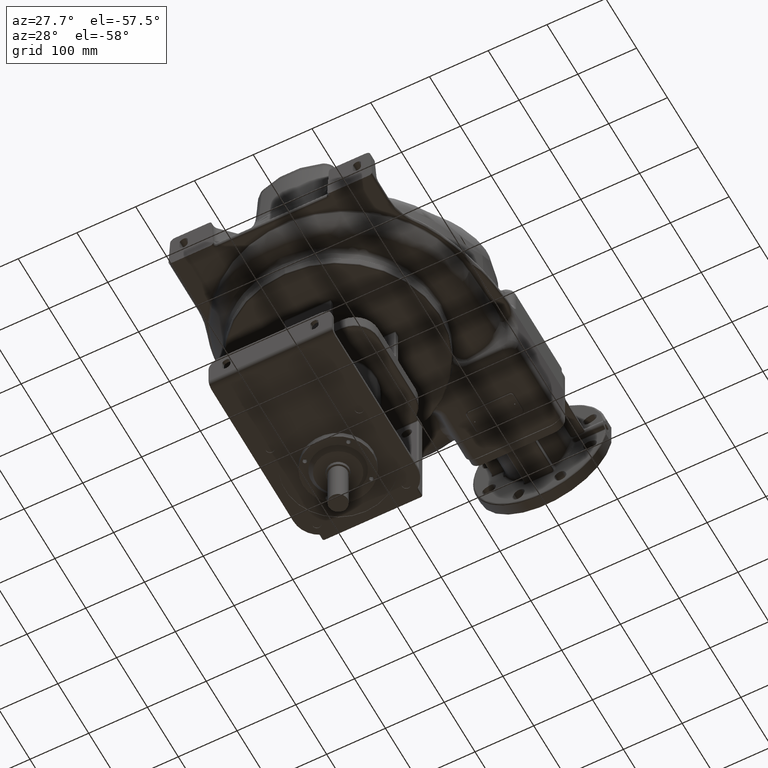
[diagram: clean part render]
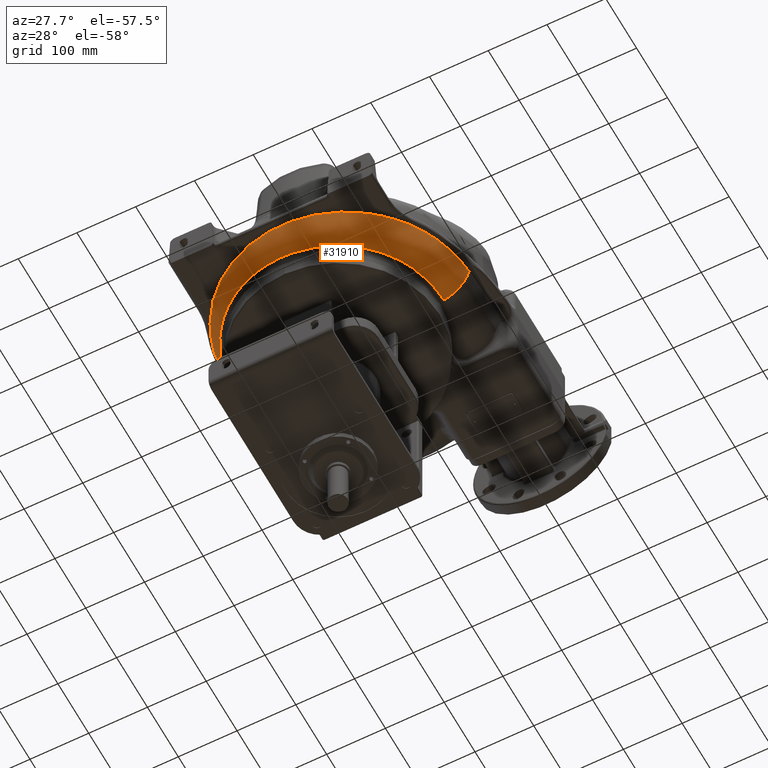
[diagram: same view with one face highlighted and labeled with its STEP entity id]
A machine part, auxiliary view. The second image highlights one B-rep face of the part: STEP entity #31910.
In plain terms, the highlighted face is a freeform B-spline surface patch.
Its self-contained STEP definition (entity closure, byte-faithful):
#4995=CARTESIAN_POINT('',(1.995254930212E2,2.198767022094E2,-9.416684251879E1));
#4996=CARTESIAN_POINT('',(2.012862758722E2,2.198599892614E2,-9.361539147830E1));
#4997=CARTESIAN_POINT('',(2.068400769254E2,2.198035409127E2,-9.159984907690E1));
#4998=CARTESIAN_POINT('',(2.156669233408E2,2.197164609426E2,-8.688004971270E1));
#4999=CARTESIAN_POINT('',(2.251198556505E2,2.195961515524E2,-7.911717179944E1));
#5000=CARTESIAN_POINT('',(2.328752383668E2,2.194748036736E2,-6.965939572615E1));
#5001=CARTESIAN_POINT('',(2.386352686991E2,2.193577415574E2,-5.886928424299E1));
#5002=CARTESIAN_POINT('',(2.411865120035E2,2.193118446787E2,-5.044815780028E1));
#5003=CARTESIAN_POINT('',(2.420309093590E2,2.192862955119E2,-4.581760230919E1));
#5004=CARTESIAN_POINT('',(2.421368989397E2,2.192831059374E2,-4.517971400711E1));
#5093=CARTESIAN_POINT('',(2.403621677771E2,2.012945648818E2,-4.520057652036E1));
#5094=CARTESIAN_POINT('',(2.406536483446E2,2.033799629870E2,-4.519806872358E1));
#5095=CARTESIAN_POINT('',(2.411671713307E2,2.074877189616E2,-4.519322657947E1));
#5096=CARTESIAN_POINT('',(2.417547283081E2,2.134717536841E2,-4.518565136657E1));
#5097=CARTESIAN_POINT('',(2.420202553778E2,2.173920182448E2,-4.518203252986E1));
#5098=CARTESIAN_POINT('',(2.421368989397E2,2.192831059374E2,-4.517971400711E1));
#5100=CARTESIAN_POINT('',(1.995254930212E2,2.198767022094E2,-9.416684251879E1));
#5101=CARTESIAN_POINT('',(1.994574612186E2,2.100847109564E2,-9.407725013904E1));
#5102=CARTESIAN_POINT('',(1.981142767083E2,1.932970106015E2,-9.389267116444E1));
#5103=CARTESIAN_POINT('',(1.920103348928E2,1.665362472095E2,-9.359536508671E1));
#5104=CARTESIAN_POINT('',(1.820948290006E2,1.415711324878E2,-9.327886241217E1));
#5105=CARTESIAN_POINT('',(1.685462212619E2,1.182032656371E2,-9.294028843835E1));
#5106=CARTESIAN_POINT('',(1.516896110822E2,9.717046315025E1,-9.257822733132E1));
#5107=CARTESIAN_POINT('',(1.318869150503E2,7.887100707956E1,-9.219000988661E1));
#5108=CARTESIAN_POINT('',(1.096068029796E2,6.374473382465E1,-9.177313388966E1));
#5109=CARTESIAN_POINT('',(8.533870225543E1,5.210552734617E1,-9.132463137844E1));
#5110=CARTESIAN_POINT('',(5.958621988299E1,4.420298692060E1,-9.084089528901E1));
#5111=CARTESIAN_POINT('',(3.296378537401E1,4.022848769725E1,-9.031899955044E1));
#5112=CARTESIAN_POINT('',(6.070392006527E0,4.026581870603E1,-8.975744364094E1));
#5113=CARTESIAN_POINT('',(-2.047330575376E1,4.430475179535E1,
-8.915387957186E1));
#5114=CARTESIAN_POINT('',(-4.610361602874E1,5.224524672189E1,
-8.850151632224E1));
#5115=CARTESIAN_POINT('',(-7.027381225204E1,6.392174821069E1,
-8.779252960426E1));
#5116=CARTESIAN_POINT('',(-9.241487978657E1,7.906017052550E1,
-8.701979466266E1));
#5117=CARTESIAN_POINT('',(-1.120408184767E2,9.732255229537E1,
-8.617376952138E1));
#5118=CARTESIAN_POINT('',(-1.287041734275E2,1.182812459213E2,
-8.524286933276E1));
#5119=CARTESIAN_POINT('',(-1.420580356226E2,1.414914967775E2,
-8.421119536122E1));
#5120=CARTESIAN_POINT('',(-1.517977795090E2,1.664351761190E2,
-8.305895518538E1));
#5121=CARTESIAN_POINT('',(-1.576970947774E2,1.925265317353E2,
-8.176548898402E1));
#5122=CARTESIAN_POINT('',(-1.589947476561E2,2.102873198188E2,
-8.077654001956E1));
#5123=CARTESIAN_POINT('',(-1.589754472696E2,2.191590052963E2,
-8.025156820779E1));
#5125=CARTESIAN_POINT('',(-1.589754472696E2,2.191590052963E2,
-8.025156820779E1));
#5126=CARTESIAN_POINT('',(-1.589703731581E2,2.218390739885E2,
-8.009205492426E1));
#5127=CARTESIAN_POINT('',(-1.588391042828E2,2.271965434280E2,
-7.976569099894E1));
#5128=CARTESIAN_POINT('',(-1.582804738650E2,2.352113116185E2,
-7.925284313603E1));
#5129=CARTESIAN_POINT('',(-1.573615123363E2,2.431903076760E2,
-7.871547152061E1));
#5130=CARTESIAN_POINT('',(-1.560842774233E2,2.511176945588E2,
-7.815242360165E1));
#5131=CARTESIAN_POINT('',(-1.546254338293E2,2.581404109317E2,
-7.762393087865E1));
#5132=CARTESIAN_POINT('',(-1.535454622422E2,2.625039264964E2,
-7.727639862865E1));
#5133=CARTESIAN_POINT('',(-1.530806877845E2,2.642652668738E2,
-7.713301338181E1));
#5135=CARTESIAN_POINT('',(-1.530806877845E2,2.642652668738E2,
-7.713301338181E1));
#5136=CARTESIAN_POINT('',(-1.555671932030E2,2.610861609744E2,
-7.437344202418E1));
#5137=CARTESIAN_POINT('',(-1.597645035352E2,2.547052451548E2,
-6.867019467310E1));
#5138=CARTESIAN_POINT('',(-1.641941496515E2,2.450742891012E2,
-5.977419080802E1));
#5139=CARTESIAN_POINT('',(-1.667766731549E2,2.363684395481E2,
-5.181119459627E1));
#5140=CARTESIAN_POINT('',(-1.676807851390E2,2.307161369092E2,
-4.721609365995E1));
#5141=CARTESIAN_POINT('',(-1.679816427398E2,2.279101150040E2,
-4.525928142582E1));
#5143=CARTESIAN_POINT('',(-1.679816427398E2,2.279101150040E2,
-4.525928142582E1));
#5144=CARTESIAN_POINT('',(-1.681920574513E2,2.257840720139E2,
-4.517867703848E1));
#5145=CARTESIAN_POINT('',(-1.685345958341E2,2.215792240930E2,
-4.503117790733E1));
#5146=CARTESIAN_POINT('',(-1.688299444850E2,2.154061194203E2,
-4.488593075591E1));
#5147=CARTESIAN_POINT('',(-1.688911636724E2,2.114137685214E2,
-4.485174359113E1));
#5148=CARTESIAN_POINT('',(-1.688909311784E2,2.094470320134E2,
-4.485005922300E1));
#5150=CARTESIAN_POINT('',(-1.688909311784E2,2.094470320134E2,
-4.485005922300E1));
#5151=CARTESIAN_POINT('',(-1.688900744136E2,2.022218077844E2,
-4.484387146770E1));
#5152=CARTESIAN_POINT('',(-1.680554965257E2,1.877422666248E2,
-4.483173071221E1));
#5153=CARTESIAN_POINT('',(-1.643152729931E2,1.662380591924E2,
-4.481333270458E1));
#5154=CARTESIAN_POINT('',(-1.601768030485E2,1.522025835402E2,
-4.480180580058E1));
#5155=CARTESIAN_POINT('',(-1.577072543905E2,1.453093788699E2,
-4.479582260635E1));
#5157=CARTESIAN_POINT('',(-1.577072543905E2,1.453093788699E2,
-4.479582260635E1));
#5158=CARTESIAN_POINT('',(-1.566626895949E2,1.423937004130E2,
-4.479325775293E1));
#5159=CARTESIAN_POINT('',(-1.544483818740E2,1.366542314917E2,
-4.497046870554E1));
#5160=CARTESIAN_POINT('',(-1.505952640485E2,1.280110821730E2,
-4.556609791123E1));
#5161=CARTESIAN_POINT('',(-1.480157151643E2,1.228956957141E2,
-4.578962231036E1));
#5162=CARTESIAN_POINT('',(-1.467180720611E2,1.204356040242E2,
-4.578681979600E1));
#5164=CARTESIAN_POINT('',(-1.467180720611E2,1.204356040242E2,
-4.578681979600E1));
#5165=CARTESIAN_POINT('',(-1.424836438297E2,1.124079814821E2,
-4.577761776077E1));
#5166=CARTESIAN_POINT('',(-1.328631765930E2,9.690946403487E1,
-4.575901251045E1));
#5167=CARTESIAN_POINT('',(-1.152485234600E2,7.581509609112E1,
-4.573055907554E1));
#5168=CARTESIAN_POINT('',(-9.474531880642E1,5.727037698843E1,
-4.570151436146E1));
#5169=CARTESIAN_POINT('',(-7.169874468006E1,4.165257167819E1,
-4.567187986935E1));
#5170=CARTESIAN_POINT('',(-4.656329763918E1,2.932279699128E1,
-4.564168671575E1));
#5171=CARTESIAN_POINT('',(-1.982183026193E1,2.055353767802E1,
-4.561103963234E1));
#5172=CARTESIAN_POINT('',(8.021710706573E0,1.554102910481E1,-4.557990539937E1));
#5173=CARTESIAN_POINT('',(3.648569074103E1,1.441484463091E1,-4.554824855636E1));
#5174=CARTESIAN_POINT('',(6.500385393166E1,1.724574304191E1,-4.551612757960E1));
#5175=CARTESIAN_POINT('',(9.300919853171E1,2.401412308114E1,-4.548357442695E1));
#5176=CARTESIAN_POINT('',(1.199507205631E2,3.461797011246E1,-4.545059984187E1));
#5177=CARTESIAN_POINT('',(1.453220361131E2,4.888988157812E1,-4.541725318537E1));
#5178=CARTESIAN_POINT('',(1.686470183527E2,6.660967570012E1,-4.538349465059E1));
#5179=CARTESIAN_POINT('',(1.825059645238E2,8.050507949889E1,-4.536073023286E1));
#5180=CARTESIAN_POINT('',(1.889460815896E2,8.791316642398E1,-4.534928334569E1));
#5182=CARTESIAN_POINT('',(1.889460815896E2,8.791316642398E1,-4.534928334569E1));
#5183=CARTESIAN_POINT('',(1.904817203420E2,8.967963273930E1,-4.534654674816E1));
#5184=CARTESIAN_POINT('',(1.935499158603E2,9.328256395296E1,-4.514845472029E1));
#5185=CARTESIAN_POINT('',(1.982455629827E2,9.916722171992E1,-4.466825781582E1));
#5186=CARTESIAN_POINT('',(2.010694208428E2,1.030055370248E2,-4.453229882786E1));
#5187=CARTESIAN_POINT('',(2.024333619274E2,1.049358941290E2,-4.453151828639E1));
#5189=CARTESIAN_POINT('',(2.024333619274E2,1.049358941290E2,-4.453151828639E1));
#5190=CARTESIAN_POINT('',(2.055427315354E2,1.093365261585E2,-4.452970029625E1));
#5191=CARTESIAN_POINT('',(2.114422825591E2,1.183822813355E2,-4.452596058482E1));
#5192=CARTESIAN_POINT('',(2.192763210783E2,1.326052982714E2,-4.452061017041E1));
#5193=CARTESIAN_POINT('',(2.237960485444E2,1.424855075819E2,-4.451742932346E1));
#5194=CARTESIAN_POINT('',(2.258727182275E2,1.475110370816E2,-4.451571365787E1));
#5196=CARTESIAN_POINT('',(2.258727182275E2,1.475110370816E2,-4.451571365787E1));
#5197=CARTESIAN_POINT('',(2.281248256996E2,1.529611755041E2,-4.451386507398E1));
#5198=CARTESIAN_POINT('',(2.322628344673E2,1.642435068882E2,-4.462261752965E1));
#5199=CARTESIAN_POINT('',(2.372249815956E2,1.825368372572E2,-4.502441863477E1));
#5200=CARTESIAN_POINT('',(2.394802942276E2,1.949850637622E2,-4.520816133803E1));
#5201=CARTESIAN_POINT('',(2.403621677771E2,2.012945648818E2,-4.520057652036E1));
#16829=VERTEX_POINT('',#5093);
#16830=VERTEX_POINT('',#5098);
#17151=VERTEX_POINT('',#5164);
#17152=VERTEX_POINT('',#5180);
#17239=VERTEX_POINT('',#5196);
#17241=VERTEX_POINT('',#5189);
#17243=VERTEX_POINT('',#5157);
#17245=VERTEX_POINT('',#5150);
#17247=VERTEX_POINT('',#5143);
#17334=VERTEX_POINT('',#5100);
#17335=VERTEX_POINT('',#5123);
#17349=VERTEX_POINT('',#5133);
#31501=CARTESIAN_POINT('',(-1.578851870967E2,2.727176717335E2,
-4.510989501510E1));
#31502=CARTESIAN_POINT('',(-1.592561862800E2,2.689112312007E2,
-4.505236844996E1));
#31503=CARTESIAN_POINT('',(-1.638825184477E2,2.546133604871E2,
-4.483876907299E1));
#31504=CARTESIAN_POINT('',(-1.688457478832E2,2.290072147267E2,
-4.446902983124E1));
#31505=CARTESIAN_POINT('',(-1.693723045594E2,1.960009638886E2,
-4.400063484999E1));
#31506=CARTESIAN_POINT('',(-1.641911856303E2,1.634243431788E2,
-4.353217384073E1));
#31507=CARTESIAN_POINT('',(-1.535222720337E2,1.322365154289E2,
-4.306367640090E1));
#31508=CARTESIAN_POINT('',(-1.377381736464E2,1.033257861463E2,
-4.259517066088E1));
#31509=CARTESIAN_POINT('',(-1.173456464295E2,7.748767489249E1,
-4.212668334364E1));
#31510=CARTESIAN_POINT('',(-9.296453629116E1,5.540709039800E1,
-4.165823986841E1));
#31511=CARTESIAN_POINT('',(-6.530487689823E1,3.764493958841E1,
-4.118986442526E1));
#31512=CARTESIAN_POINT('',(-3.514318060607E1,2.462906781481E1,
-4.072158004449E1));
#31513=CARTESIAN_POINT('',(-3.298479926369E0,1.664937016129E1,
-4.025340867129E1));
#31514=CARTESIAN_POINT('',(2.939114700380E1,1.385696340112E1,
-3.978537122974E1));
#31515=CARTESIAN_POINT('',(6.209095609220E1,1.626700481138E1,
-3.931748768205E1));
#31516=CARTESIAN_POINT('',(9.399036587234E1,2.376479803728E1,
-3.884977708635E1));
#31517=CARTESIAN_POINT('',(1.243218235708E2,3.611477543578E1,
-3.838225765102E1));
#31518=CARTESIAN_POINT('',(1.523773494827E2,5.297183281202E1,
-3.791494678273E1));
#31519=CARTESIAN_POINT('',(1.775227073597E2,7.389474899020E1,
-3.744786114281E1));
#31520=CARTESIAN_POINT('',(1.992084845077E2,9.836047961054E1,
-3.698101665648E1));
#31521=CARTESIAN_POINT('',(2.169798609548E2,1.257812823902E2,
-3.651442867339E1));
#31522=CARTESIAN_POINT('',(2.282295053292E2,1.505607114197E2,
-3.612583114413E1));
#31523=CARTESIAN_POINT('',(2.349697692902E2,1.712089306404E2,
-3.581509588587E1));
#31524=CARTESIAN_POINT('',(2.382226913911E2,1.843828739891E2,
-3.562094702944E1));
#31525=CARTESIAN_POINT('',(2.402431921560E2,1.950437959484E2,
-3.546566538552E1));
#31526=CARTESIAN_POINT('',(2.412608821561E2,2.017489624073E2,
-3.536863006717E1));
#31527=CARTESIAN_POINT('',(2.419281446627E2,2.071254995849E2,
-3.529101124464E1));
#31528=CARTESIAN_POINT('',(2.422856610714E2,2.104932580455E2,
-3.524250349161E1));
#31529=CARTESIAN_POINT('',(2.425347167843E2,2.132096401217E2,
-3.520369997787E1));
#31530=CARTESIAN_POINT('',(2.429430543580E2,2.182356166608E2,
-3.513184462691E1));
#31531=CARTESIAN_POINT('',(2.431621307957E2,2.224027242105E2,
-3.506970046865E1));
#31532=CARTESIAN_POINT('',(2.433813858669E2,2.257922388988E2,
-3.501725466826E1));
#31533=CARTESIAN_POINT('',(-1.578829460107E2,2.727089677562E2,
-4.817623398237E1));
#31534=CARTESIAN_POINT('',(-1.592537682985E2,2.689025460377E2,
-4.812511076636E1));
#31535=CARTESIAN_POINT('',(-1.638794467270E2,2.546047662382E2,
-4.793526230518E1));
#31536=CARTESIAN_POINT('',(-1.688415725060E2,2.289989096945E2,
-4.760647030894E1));
#31537=CARTESIAN_POINT('',(-1.693668166374E2,1.959932481692E2,
-4.718962160779E1));
#31538=CARTESIAN_POINT('',(-1.641844980300E2,1.634174170862E2,
-4.677236881842E1));
#31539=CARTESIAN_POINT('',(-1.535145198874E2,1.322305561050E2,
-4.635472029912E1));
#31540=CARTESIAN_POINT('',(-1.377295103177E2,1.033209482329E2,
-4.593668479890E1));
#31541=CARTESIAN_POINT('',(-1.173362407821E2,7.748409138057E1,
-4.551827047272E1));
#31542=CARTESIAN_POINT('',(-9.295457120568E1,5.540487347608E1,
-4.509948545642E1));
#31543=CARTESIAN_POINT('',(-6.529454884438E1,3.764418093045E1,
-4.468033775135E1));
#31544=CARTESIAN_POINT('',(-3.513269986518E1,2.462983787365E1,
-4.426083499470E1));
#31545=CARTESIAN_POINT('',(-3.288071076151E0,1.665171633764E1,
-4.384098466749E1));
#31546=CARTESIAN_POINT('',(2.940124485915E1,1.386090693511E1,
-4.342079406408E1));
#31547=CARTESIAN_POINT('',(6.210048994581E1,1.627253647147E1,
-4.300027020851E1));
#31548=CARTESIAN_POINT('',(9.399907077109E1,2.377187290877E1,
-4.257941987768E1));
#31549=CARTESIAN_POINT('',(1.243294263170E2,3.612330727030E1,
-4.215824963748E1));
#31550=CARTESIAN_POINT('',(1.523835743377E2,5.298168847297E1,
-4.173676574338E1));
#31551=CARTESIAN_POINT('',(1.775272837070E2,7.390574383143E1,
-4.131497454222E1));
#31552=CARTESIAN_POINT('',(1.992111566357E2,9.837237386213E1,
-4.089288088725E1));
#31553=CARTESIAN_POINT('',(2.169803983120E2,1.257937808462E2,
-4.047049342658E1));
#31554=CARTESIAN_POINT('',(2.282281046768E2,1.505734201581E2,
-4.011825592944E1));
#31555=CARTESIAN_POINT('',(2.349667451448E2,1.712216080530E2,
-3.983633092248E1));
#31556=CARTESIAN_POINT('',(2.382186313243E2,1.843954427390E2,
-3.966006294411E1));
#31557=CARTESIAN_POINT('',(2.402382912287E2,1.950562224595E2,
-3.951901788184E1));
#31558=CARTESIAN_POINT('',(2.412554510694E2,2.017612756538E2,
-3.943084944437E1));
#31559=CARTESIAN_POINT('',(2.419222949177E2,2.071377099210E2,
-3.936030206659E1));
#31560=CARTESIAN_POINT('',(2.422795484357E2,2.105053967835E2,
-3.931620703755E1));
#31561=CARTESIAN_POINT('',(2.425283747920E2,2.132217089417E2,
-3.928093902809E1));
#31562=CARTESIAN_POINT('',(2.429362972414E2,2.182475626829E2,
-3.921558566990E1));
#31563=CARTESIAN_POINT('',(2.431552036013E2,2.224146735191E2,
-3.915913112947E1));
#31564=CARTESIAN_POINT('',(2.433744312832E2,2.258042225120E2,
-3.911124155113E1));
#31565=CARTESIAN_POINT('',(-1.575316432579E2,2.725571166066E2,
-5.423147040671E1));
#31566=CARTESIAN_POINT('',(-1.588969213560E2,2.687573494192E2,
-5.418930658605E1));
#31567=CARTESIAN_POINT('',(-1.635027112957E2,2.544851645692E2,
-5.403271444659E1));
#31568=CARTESIAN_POINT('',(-1.684353422814E2,2.289290701063E2,
-5.376141969812E1));
#31569=CARTESIAN_POINT('',(-1.689343978373E2,1.959949143783E2,
-5.341726942071E1));
#31570=CARTESIAN_POINT('',(-1.637388134502E2,1.634970486604E2,
-5.307257362699E1));
#31571=CARTESIAN_POINT('',(-1.530698758167E2,1.323922349038E2,
-5.272732393855E1));
#31572=CARTESIAN_POINT('',(-1.373011581885E2,1.035661091451E2,
-5.238151385678E1));
#31573=CARTESIAN_POINT('',(-1.169398744167E2,7.781131199312E1,
-5.203513586931E1));
#31574=CARTESIAN_POINT('',(-9.260577753764E1,5.580977149072E1,
-5.168818313380E1));
#31575=CARTESIAN_POINT('',(-6.500823394633E1,3.811942035621E1,
-5.134064913995E1));
#31576=CARTESIAN_POINT('',(-3.492250177512E1,2.516524897344E1,
-5.099252700157E1));
#31577=CARTESIAN_POINT('',(-3.165798441096E0,1.723454541935E1,
-5.064381005702E1));
#31578=CARTESIAN_POINT('',(2.942611792321E1,1.447618636898E1,
-5.029449179635E1));
#31579=CARTESIAN_POINT('',(6.202125026887E1,1.690356142206E1,
-4.994456560751E1));
#31580=CARTESIAN_POINT('',(9.381208206431E1,2.440076629735E1,
-4.959402487134E1));
#31581=CARTESIAN_POINT('',(1.240343152797E2,3.673164310911E1,
-4.924286309555E1));
#31582=CARTESIAN_POINT('',(1.519832756459E2,5.355113986581E1,
-4.889107369064E1));
#31583=CARTESIAN_POINT('',(1.770279407588E2,7.441871661292E1,
-4.853865114193E1));
#31584=CARTESIAN_POINT('',(1.986218948353E2,9.881259721304E1,
-4.818558668235E1));
#31585=CARTESIAN_POINT('',(2.163129741398E2,1.261468072917E2,
-4.783188298868E1));
#31586=CARTESIAN_POINT('',(2.275072008173E2,1.508436392191E2,
-4.753657167029E1));
#31587=CARTESIAN_POINT('',(2.342108826033E2,1.714207206276E2,
-4.730001623216E1));
#31588=CARTESIAN_POINT('',(2.374443420186E2,1.845484595902E2,
-4.715201564764E1));
#31589=CARTESIAN_POINT('',(2.394513416243E2,1.951713932060E2,
-4.703354479408E1));
#31590=CARTESIAN_POINT('',(2.404614792618E2,2.018523853842E2,
-4.695946413003E1));
#31591=CARTESIAN_POINT('',(2.411232963907E2,2.072098711402E2,
-4.690016817806E1));
#31592=CARTESIAN_POINT('',(2.414775950188E2,2.105654416498E2,
-4.686310083418E1));
#31593=CARTESIAN_POINT('',(2.417241080517E2,2.132707278446E2,
-4.683346953836E1));
#31594=CARTESIAN_POINT('',(2.421281355454E2,2.182776638110E2,
-4.677848371641E1));
#31595=CARTESIAN_POINT('',(2.423447614297E2,2.224433953760E2,
-4.673114117208E1));
#31596=CARTESIAN_POINT('',(2.425616801271E2,2.258338705191E2,
-4.669049141834E1));
#31597=CARTESIAN_POINT('',(-1.561155923470E2,2.719842718348E2,
-6.297148831498E1));
#31598=CARTESIAN_POINT('',(-1.574621649303E2,2.682125478818E2,
-6.293534608689E1));
#31599=CARTESIAN_POINT('',(-1.620016285063E2,2.540473002073E2,
-6.280110261188E1));
#31600=CARTESIAN_POINT('',(-1.668409000678E2,2.286932036395E2,
-6.256843614704E1));
#31601=CARTESIAN_POINT('',(-1.672671309992E2,1.960391259347E2,
-6.227314447277E1));
#31602=CARTESIAN_POINT('',(-1.620486683290E2,1.638375418206E2,
-6.197726763792E1));
#31603=CARTESIAN_POINT('',(-1.514099272572E2,1.330363275438E2,
-6.168082182047E1));
#31604=CARTESIAN_POINT('',(-1.357260655316E2,1.045116967038E2,
-6.138382586725E1));
#31605=CARTESIAN_POINT('',(-1.155041947371E2,7.904650908389E1,
-6.108629536647E1));
#31606=CARTESIAN_POINT('',(-9.136219295361E1,5.731289924576E1,
-6.078824576118E1));
#31607=CARTESIAN_POINT('',(-6.400576004187E1,3.985932377344E1,
-6.048969158537E1));
#31608=CARTESIAN_POINT('',(-3.420470226055E1,2.710194915129E1,
-6.019064495140E1));
#31609=CARTESIAN_POINT('',(-2.769130330352E0,1.932027528319E1,
-5.989111673620E1));
#31610=CARTESIAN_POINT('',(2.947374044231E1,1.665676802387E1,
-5.959111659751E1));
#31611=CARTESIAN_POINT('',(6.170161452685E1,1.912007539670E1,
-5.929065263002E1));
#31612=CARTESIAN_POINT('',(9.311746583043E1,2.659145058619E1,
-5.898973181906E1));
#31613=CARTESIAN_POINT('',(1.229678572161E2,3.883392463748E1,
-5.868836054324E1));
#31614=CARTESIAN_POINT('',(1.505589040213E2,5.550369273911E1,
-5.838654450481E1));
#31615=CARTESIAN_POINT('',(1.752698626249E2,7.616342628706E1,
-5.808429083864E1));
#31616=CARTESIAN_POINT('',(1.965637094281E2,1.002963505077E2,
-5.778160136348E1));
#31617=CARTESIAN_POINT('',(2.139964327972E2,1.273229578706E2,
-5.747849596575E1));
#31618=CARTESIAN_POINT('',(2.250158098050E2,1.517310699690E2,
-5.722553399785E1));
#31619=CARTESIAN_POINT('',(2.316063627705E2,1.720618210998E2,
-5.702299271166E1));
#31620=CARTESIAN_POINT('',(2.347807352592E2,1.850304392397E2,
-5.689629413229E1));
#31621=CARTESIAN_POINT('',(2.367475106254E2,1.955230322189E2,
-5.679490243692E1));
#31622=CARTESIAN_POINT('',(2.377355147127E2,2.021212669965E2,
-5.673150978341E1));
#31623=CARTESIAN_POINT('',(2.383815871329E2,2.074136126190E2,
-5.668077097707E1));
#31624=CARTESIAN_POINT('',(2.387266897971E2,2.107276314463E2,
-5.664904429394E1));
#31625=CARTESIAN_POINT('',(2.389660910762E2,2.133951862998E2,
-5.662369218585E1));
#31626=CARTESIAN_POINT('',(2.393581158554E2,2.183368003265E2,
-5.657667069121E1));
#31627=CARTESIAN_POINT('',(2.395673068538E2,2.224966777805E2,
-5.653644036902E1));
#31628=CARTESIAN_POINT('',(2.397763283827E2,2.258911386894E2,
-5.650121621780E1));
#31629=CARTESIAN_POINT('',(-1.538014686552E2,2.710635589171E2,
-7.131167052980E1));
#31630=CARTESIAN_POINT('',(-1.551193920903E2,2.673383311497E2,
-7.127988061870E1));
#31631=CARTESIAN_POINT('',(-1.595577631675E2,2.533499042810E2,
-7.116174680981E1));
#31632=CARTESIAN_POINT('',(-1.642579563553E2,2.283267025511E2,
-7.095663444170E1));
#31633=CARTESIAN_POINT('',(-1.645825493885E2,1.961258959211E2,
-7.069560787476E1));
#31634=CARTESIAN_POINT('',(-1.593430212976E2,1.643986218226E2,
-7.043333680853E1));
#31635=CARTESIAN_POINT('',(-1.487675808888E2,1.340785104135E2,
-7.016981213231E1));
#31636=CARTESIAN_POINT('',(-1.332327251137E2,1.060269256849E2,
-6.990503067507E1));
#31637=CARTESIAN_POINT('',(-1.132442722443E2,8.101155702329E1,
-6.963898577512E1));
#31638=CARTESIAN_POINT('',(-8.941608689511E1,5.968958548698E1,
-6.937167164336E1));
#31639=CARTESIAN_POINT('',(-6.244715277989E1,4.259523382601E1,
-6.910308207006E1));
#31640=CARTESIAN_POINT('',(-3.309791272798E1,3.013165529117E1,
-6.883320792082E1));
#31641=CARTESIAN_POINT('',(-2.166710868974E0,2.256712323666E1,
-6.856203901547E1));
#31642=CARTESIAN_POINT('',(2.953303346498E1,2.003515563982E1,
-6.828956444551E1));
#31643=CARTESIAN_POINT('',(6.119439382752E1,2.253813904847E1,
-6.801577233436E1));
#31644=CARTESIAN_POINT('',(9.203669808412E1,2.995405821250E1,
-6.774065095179E1));
#31645=CARTESIAN_POINT('',(1.213231960234E2,4.204582279788E1,
-6.746418982281E1));
#31646=CARTESIAN_POINT('',(1.483763467665E2,5.847264582133E1,
-6.718638009034E1));
#31647=CARTESIAN_POINT('',(1.725907450185E2,7.880316461511E1,
-6.690721731537E1));
#31648=CARTESIAN_POINT('',(1.934431448127E2,1.025292123872E2,
-6.662669353307E1));
#31649=CARTESIAN_POINT('',(2.105012378988E2,1.290819944448E2,
-6.634482475867E1));
#31650=CARTESIAN_POINT('',(2.212719880884E2,1.530499445746E2,
-6.610877666028E1));
#31651=CARTESIAN_POINT('',(2.277050689156E2,1.730078519737E2,
-6.591930403500E1));
#31652=CARTESIAN_POINT('',(2.307988830883E2,1.857367244506E2,
-6.580057459056E1));
#31653=CARTESIAN_POINT('',(2.327119879340E2,1.960336197484E2,
-6.570544158140E1));
#31654=CARTESIAN_POINT('',(2.336710243837E2,2.025078698746E2,
-6.564591329591E1));
#31655=CARTESIAN_POINT('',(2.342968785699E2,2.077027252620E2,
-6.559824199432E1));
#31656=CARTESIAN_POINT('',(2.346303530037E2,2.109547718436E2,
-6.556840069522E1));
#31657=CARTESIAN_POINT('',(2.348608702260E2,2.135662332113E2,
-6.554453699108E1));
#31658=CARTESIAN_POINT('',(2.352379828945E2,2.184096721632E2,
-6.550040636381E1));
#31659=CARTESIAN_POINT('',(2.354383896054E2,2.225587382393E2,
-6.546283207832E1));
#31660=CARTESIAN_POINT('',(2.356376823909E2,2.259603819810E2,
-6.542935555260E1));
#31661=CARTESIAN_POINT('',(-1.504653867690E2,2.697538679649E2,
-7.910064499128E1));
#31662=CARTESIAN_POINT('',(-1.517431824619E2,2.660961050631E2,
-7.907390225309E1));
#31663=CARTESIAN_POINT('',(-1.560403700374E2,2.523639934095E2,
-7.897431476220E1));
#31664=CARTESIAN_POINT('',(-1.605491079486E2,2.278187200917E2,
-7.880009555494E1));
#31665=CARTESIAN_POINT('',(-1.607399746064E2,1.962688705711E2,
-7.857614220814E1));
#31666=CARTESIAN_POINT('',(-1.554831683456E2,1.652186910795E2,
-7.834905837704E1));
#31667=CARTESIAN_POINT('',(-1.450111525401E2,1.355810255232E2,
-7.811899431479E1));
#31668=CARTESIAN_POINT('',(-1.297010667398E2,1.081959225636E2,
-7.788609936683E1));
#31669=CARTESIAN_POINT('',(-1.100556037041E2,8.380965334321E1,
-7.765050931260E1));
#31670=CARTESIAN_POINT('',(-8.668170457460E1,6.305863157650E1,
-7.741235187573E1));
#31671=CARTESIAN_POINT('',(-6.026774269683E1,4.645764563853E1,
-7.717174534837E1));
#31672=CARTESIAN_POINT('',(-3.156001931914E1,3.439240786325E1,
-7.692879550759E1));
#31673=CARTESIAN_POINT('',(-1.339607268278E0,2.711647713148E1,
-7.668359873378E1));
#31674=CARTESIAN_POINT('',(2.959991061345E1,2.475200312856E1,
-7.643624334598E1));
#31675=CARTESIAN_POINT('',(6.047334752765E1,2.729384689711E1,
-7.618681015487E1));
#31676=CARTESIAN_POINT('',(9.052284778981E1,3.461666498075E1,
-7.593537489611E1));
#31677=CARTESIAN_POINT('',(1.190346565364E2,4.648438161377E1,
-7.568201048403E1));
#31678=CARTESIAN_POINT('',(1.453534907770E2,6.256149495777E1,
-7.542678833599E1));
#31679=CARTESIAN_POINT('',(1.688945797522E2,8.242587945395E1,
-7.516978177563E1));
#31680=CARTESIAN_POINT('',(1.891529613144E2,1.055820946968E2,
-7.491105847584E1));
#31681=CARTESIAN_POINT('',(2.057115956019E2,1.314767770371E2,
-7.465070728462E1));
#31682=CARTESIAN_POINT('',(2.161549845745E2,1.548375979338E2,
-7.443241456910E1));
#31683=CARTESIAN_POINT('',(2.223835155854E2,1.742835975064E2,
-7.425707268859E1));
#31684=CARTESIAN_POINT('',(2.253740855021E2,1.866842456361E2,
-7.414715327564E1));
#31685=CARTESIAN_POINT('',(2.272193888203E2,1.967138052966E2,
-7.405905444391E1));
#31686=CARTESIAN_POINT('',(2.281423089223E2,2.030188963952E2,
-7.400392138699E1));
#31687=CARTESIAN_POINT('',(2.287432841947E2,2.080807782680E2,
-7.395977377058E1));
#31688=CARTESIAN_POINT('',(2.290626223909E2,2.112485822264E2,
-7.393211330552E1));
#31689=CARTESIAN_POINT('',(2.292824497166E2,2.137840304685E2,
-7.390997106314E1));
#31690=CARTESIAN_POINT('',(2.296415981590E2,2.184926861163E2,
-7.386921759692E1));
#31691=CARTESIAN_POINT('',(2.298317851995E2,2.226239154083E2,
-7.383464867758E1));
#31692=CARTESIAN_POINT('',(2.300193521268E2,2.260372095810E2,
-7.380346767580E1));
#31693=CARTESIAN_POINT('',(-1.466425225511E2,2.682789070696E2,
-8.493556572348E1));
#31694=CARTESIAN_POINT('',(-1.478749468178E2,2.646986448286E2,
-8.491465516828E1));
#31695=CARTESIAN_POINT('',(-1.520127640947E2,2.512608985620E2,
-8.483656952984E1));
#31696=CARTESIAN_POINT('',(-1.563071825554E2,2.272638433289E2,
-8.469863153120E1));
#31697=CARTESIAN_POINT('',(-1.563524510227E2,1.964588302140E2,
-8.451911353423E1));
#31698=CARTESIAN_POINT('',(-1.510840370546E2,1.661810914131E2,
-8.433513156549E1));
#31699=CARTESIAN_POINT('',(-1.407384710826E2,1.373193730989E2,
-8.414699702949E1));
#31700=CARTESIAN_POINT('',(-1.256927695105E2,1.106892940597E2,
-8.395500052123E1));
#31701=CARTESIAN_POINT('',(-1.064452211974E2,8.701284993205E1,
-8.375940017788E1));
#31702=CARTESIAN_POINT('',(-8.359412517910E1,6.690316084568E1,
-8.356042896227E1));
#31703=CARTESIAN_POINT('',(-5.781515826991E1,5.085343295038E1,
-8.335829517867E1));
#31704=CARTESIAN_POINT('',(-2.983809240648E1,3.923020521369E1,
-8.315318067657E1));
#31705=CARTESIAN_POINT('',(-4.241139535416E-1,3.227104129379E1,
-8.294524597771E1));
#31706=CARTESIAN_POINT('',(2.965579601225E1,3.008591871136E1,
-8.273463356269E1));
#31707=CARTESIAN_POINT('',(5.964102851047E1,3.266186156880E1,
-8.252147007893E1));
#31708=CARTESIAN_POINT('',(8.879936974194E1,3.987038500334E1,
-8.230587049419E1));
#31709=CARTESIAN_POINT('',(1.164427848891E2,5.147710296253E1,
-8.208794179812E1));
#31710=CARTESIAN_POINT('',(1.419407855119E2,6.715293653660E1,
-8.186778559655E1));
#31711=CARTESIAN_POINT('',(1.647314979197E2,8.648654819396E1,
-8.164550199375E1));
#31712=CARTESIAN_POINT('',(1.843301651574E2,1.089971348064E2,
-8.142118384602E1));
#31713=CARTESIAN_POINT('',(2.003365266387E2,1.341489240007E2,
-8.119493920263E1));
#31714=CARTESIAN_POINT('',(2.104201863970E2,1.568264681378E2,
-8.100484224214E1));
#31715=CARTESIAN_POINT('',(2.164255535237E2,1.756975083443E2,
-8.085191978121E1));
#31716=CARTESIAN_POINT('',(2.193043136256E2,1.877299704320E2,
-8.075596495198E1));
#31717=CARTESIAN_POINT('',(2.210767980613E2,1.974599603063E2,
-8.067900161273E1));
#31718=CARTESIAN_POINT('',(2.219612254960E2,2.035755855237E2,
-8.063081715504E1));
#31719=CARTESIAN_POINT('',(2.225358858327E2,2.084884792051E2,
-8.059222789418E1));
#31720=CARTESIAN_POINT('',(2.228403971704E2,2.115622210795E2,
-8.056802847707E1));
#31721=CARTESIAN_POINT('',(2.230491001250E2,2.140130690398E2,
-8.054863432507E1));
#31722=CARTESIAN_POINT('',(2.233894577642E2,2.185693847573E2,
-8.051308867110E1));
#31723=CARTESIAN_POINT('',(2.235691580572E2,2.226768486900E2,
-8.048296018392E1));
#31724=CARTESIAN_POINT('',(2.237443069142E2,2.261054406869E2,
-8.045563772681E1));
#31725=CARTESIAN_POINT('',(-1.428283141077E2,2.668339390899E2,
-8.903268079654E1));
#31726=CARTESIAN_POINT('',(-1.440164988743E2,2.633312389787E2,
-8.901638089537E1));
#31727=CARTESIAN_POINT('',(-1.479991509995E2,2.501878614926E2,
-8.895540688845E1));
#31728=CARTESIAN_POINT('',(-1.520863750148E2,2.267375817695E2,
-8.884708109132E1));
#31729=CARTESIAN_POINT('',(-1.519940052444E2,1.966731555053E2,
-8.870523309856E1));
#31730=CARTESIAN_POINT('',(-1.467202452815E2,1.671616677085E2,
-8.855921480484E1));
#31731=CARTESIAN_POINT('',(-1.365052598479E2,1.390684086863E2,
-8.840943666331E1));
#31732=CARTESIAN_POINT('',(-1.217257432597E2,1.131852891580E2,
-8.825626221450E1));
#31733=CARTESIAN_POINT('',(-1.028756173862E2,9.021075348729E1,
-8.810000285814E1));
#31734=CARTESIAN_POINT('',(-8.054479415486E1,7.073528218459E1,
-8.794092814535E1));
#31735=CARTESIAN_POINT('',(-5.539668346008E1,5.523102032956E1,
-8.777926996261E1));
#31736=CARTESIAN_POINT('',(-2.814507974091E1,4.404568275021E1,
-8.761522363237E1));
#31737=CARTESIAN_POINT('',(4.681074234336E-1,3.740099103250E1,
-8.744895507437E1));
#31738=CARTESIAN_POINT('',(2.969389697574E1,3.539470729150E1,
-8.728060606795E1));
#31739=CARTESIAN_POINT('',(5.879572191324E1,3.800579917592E1,
-8.711029812702E1));
#31740=CARTESIAN_POINT('',(8.706658783293E1,4.510228011351E1,
-8.693813791953E1));
#31741=CARTESIAN_POINT('',(1.138439030120E2,5.645099931798E1,
-8.676422200196E1));
#31742=CARTESIAN_POINT('',(1.385218572625E2,7.172880478060E1,
-8.658864035067E1));
#31743=CARTESIAN_POINT('',(1.605615146661E2,9.053465881248E1,
-8.641148043169E1));
#31744=CARTESIAN_POINT('',(1.794985054137E2,1.124019648861E2,
-8.623282351248E1));
#31745=CARTESIAN_POINT('',(1.949496394700E2,1.368121895920E2,
-8.605276194003E1));
#31746=CARTESIAN_POINT('',(2.046705867539E2,1.588065325278E2,
-8.590158293716E1));
#31747=CARTESIAN_POINT('',(2.104502971801E2,1.771019813789E2,
-8.578003673383E1));
#31748=CARTESIAN_POINT('',(2.132156823084E2,1.887655752432E2,
-8.570380056264E1));
#31749=CARTESIAN_POINT('',(2.149141284071E2,1.981953110137E2,
-8.564266888459E1));
#31750=CARTESIAN_POINT('',(2.157593115458E2,2.041209436955E2,
-8.560440498237E1));
#31751=CARTESIAN_POINT('',(2.163070541923E2,2.088842957517E2,
-8.557377011588E1));
#31752=CARTESIAN_POINT('',(2.165963878335E2,2.118638731244E2,
-8.555455009562E1));
#31753=CARTESIAN_POINT('',(2.167937148481E2,2.142302357215E2,
-8.553913440543E1));
#31754=CARTESIAN_POINT('',(2.171147018929E2,2.186322628015E2,
-8.551098750686E1));
#31755=CARTESIAN_POINT('',(2.172833464533E2,2.227129293762E2,
-8.548714439834E1));
#31756=CARTESIAN_POINT('',(2.174453297553E2,2.261584762881E2,
-8.546544059459E1));
#31757=CARTESIAN_POINT('',(-1.395208055217E2,2.655981600086E2,
-9.176329044380E1));
#31758=CARTESIAN_POINT('',(-1.406727065102E2,2.621633542491E2,
-9.174967890358E1));
#31759=CARTESIAN_POINT('',(-1.445286576783E2,2.492771248516E2,
-9.169876927500E1));
#31760=CARTESIAN_POINT('',(-1.484502824516E2,2.263010858701E2,
-9.160843440971E1));
#31761=CARTESIAN_POINT('',(-1.482554388515E2,1.968732704631E2,
-9.149056986496E1));
#31762=CARTESIAN_POINT('',(-1.429913554786E2,1.680155861455E2,
-9.136981980025E1));
#31763=CARTESIAN_POINT('',(-1.329000489898E2,1.405740597590E2,
-9.124665040174E1));
#31764=CARTESIAN_POINT('',(-1.183570431239E2,1.153214071837E2,
-9.112145584485E1));
#31765=CARTESIAN_POINT('',(-9.985202857677E1,9.293716708933E1,
-9.099456224450E1));
#31766=CARTESIAN_POINT('',(-7.796765352767E1,7.399372743837E1,
-9.086624161874E1));
#31767=CARTESIAN_POINT('',(-5.335712367456E1,5.894640941546E1,
-9.073671992752E1));
#31768=CARTESIAN_POINT('',(-2.672118313405E1,4.812784136455E1,
-9.060618109810E1));
#31769=CARTESIAN_POINT('',(1.213874719072E0,4.174695637345E1,
-9.047477553387E1));
#31770=CARTESIAN_POINT('',(2.971684379723E1,3.989152523577E1,
-9.034262663291E1));
#31771=CARTESIAN_POINT('',(5.807059962266E1,4.253374997968E1,
-9.020983568626E1));
#31772=CARTESIAN_POINT('',(8.558861070789E1,4.953844013226E1,
-9.007648782313E1));
#31773=CARTESIAN_POINT('',(1.116290400158E2,6.067297922966E1,
-8.994265713970E1));
#31774=CARTESIAN_POINT('',(1.356063548616E2,7.561849012992E1,
-8.980841061184E1));
#31775=CARTESIAN_POINT('',(1.570006464559E2,9.398173427644E1,
-8.967381200775E1));
#31776=CARTESIAN_POINT('',(1.753646733762E2,1.153071096777E2,
-8.953891971943E1));
#31777=CARTESIAN_POINT('',(1.903298457931E2,1.390895948984E2,
-8.940379957660E1));
#31778=CARTESIAN_POINT('',(1.997282248366E2,1.605025548172E2,
-8.929103876021E1));
#31779=CARTESIAN_POINT('',(2.053035078895E2,1.783060028325E2,
-8.920078578187E1));
#31780=CARTESIAN_POINT('',(2.079642244495E2,1.896533244440E2,
-8.914434544531E1));
#31781=CARTESIAN_POINT('',(2.095929157296E2,1.988250067999E2,
-8.909918600511E1));
#31782=CARTESIAN_POINT('',(2.104004109494E2,2.045870571364E2,
-8.907096188660E1));
#31783=CARTESIAN_POINT('',(2.109217775637E2,2.092214311175E2,
-8.904839313842E1));
#31784=CARTESIAN_POINT('',(2.111960236183E2,2.121198867164E2,
-8.903423594011E1));
#31785=CARTESIAN_POINT('',(2.113819308823E2,2.144135488582E2,
-8.902287768114E1));
#31786=CARTESIAN_POINT('',(2.116831612988E2,2.186813536942E2,
-8.900222488362E1));
#31787=CARTESIAN_POINT('',(2.118395888162E2,2.227371033780E2,
-8.898475953937E1));
#31788=CARTESIAN_POINT('',(2.119877569397E2,2.261984623343E2,
-8.896879867354E1));
#31789=CARTESIAN_POINT('',(-1.359590041575E2,2.642839695367E2,
-9.392034070598E1));
#31790=CARTESIAN_POINT('',(-1.370714834778E2,2.609220017216E2,
-9.391073087890E1));
#31791=CARTESIAN_POINT('',(-1.407894892798E2,2.483117387943E2,
-9.387483860712E1));
#31792=CARTESIAN_POINT('',(-1.445289316341E2,2.258454874175E2,
-9.381146080872E1));
#31793=CARTESIAN_POINT('',(-1.442173905381E2,1.971043465831E2,
-9.372927420860E1));
#31794=CARTESIAN_POINT('',(-1.389569470016E2,1.689546465514E2,
-9.364551435417E1));
#31795=CARTESIAN_POINT('',(-1.289926872385E2,1.422217894019E2,
-9.356045608778E1));
#31796=CARTESIAN_POINT('',(-1.146998836646E2,1.176575935170E2,
-9.347432685210E1));
#31797=CARTESIAN_POINT('',(-9.656452591737E1,9.592072294895E1,
-9.338731018901E1));
#31798=CARTESIAN_POINT('',(-7.516208944756E1,7.756335818679E1,
-9.329955528767E1));
#31799=CARTESIAN_POINT('',(-5.113520399075E1,6.302184402795E1,
-9.321118268411E1));
#31800=CARTESIAN_POINT('',(-2.517072903758E1,5.261164191775E1,
-9.312228670741E1));
#31801=CARTESIAN_POINT('',(2.021923107583E0,4.652699396143E1,
-9.303294128617E1));
#31802=CARTESIAN_POINT('',(2.973096429583E1,4.484404548694E1,
-9.294320449103E1));
#31803=CARTESIAN_POINT('',(5.726066695823E1,4.752694154885E1,
-9.285312192164E1));
#31804=CARTESIAN_POINT('',(8.394714486088E1,5.443639592478E1,
-9.276273094614E1));
#31805=CARTESIAN_POINT('',(1.091716349594E2,6.533986930752E1,
-9.267206440982E1));
#31806=CARTESIAN_POINT('',(1.323712440749E2,7.992275188665E1,
-9.258115349403E1));
#31807=CARTESIAN_POINT('',(1.530473986664E2,9.780003504867E1,
-9.249003040287E1));
#31808=CARTESIAN_POINT('',(1.707721579892E2,1.185279615273E2,
-9.239872703366E1));
#31809=CARTESIAN_POINT('',(1.851934795478E2,1.416162175758E2,
-9.230728285138E1));
#31810=CARTESIAN_POINT('',(1.942294682731E2,1.623845432436E2,
-9.223098081148E1));
#31811=CARTESIAN_POINT('',(1.995741749326E2,1.796415018433E2,
-9.216991427353E1));
#31812=CARTESIAN_POINT('',(2.021163806372E2,1.906371405625E2,
-9.213172927716E1));
#31813=CARTESIAN_POINT('',(2.036657867050E2,1.995216803947E2,
-9.210117715740E1));
#31814=CARTESIAN_POINT('',(2.044302889384E2,2.051015916525E2,
-9.208208369562E1));
#31815=CARTESIAN_POINT('',(2.049214520819E2,2.095922187765E2,
-9.206681825958E1));
#31816=CARTESIAN_POINT('',(2.051783855792E2,2.124004557869E2,
-9.205723927892E1));
#31817=CARTESIAN_POINT('',(2.053511707613E2,2.146134459822E2,
-9.204954895507E1));
#31818=CARTESIAN_POINT('',(2.056296115275E2,2.187304343981E2,
-9.203560409504E1));
#31819=CARTESIAN_POINT('',(2.057717934922E2,2.227562858391E2,
-9.202379208817E1));
#31820=CARTESIAN_POINT('',(2.059038182437E2,2.262365310323E2,
-9.201301445027E1));
#31821=CARTESIAN_POINT('',(-1.335037127903E2,2.633849604091E2,
-9.498401655478E1));
#31822=CARTESIAN_POINT('',(-1.345859952990E2,2.600720534014E2,
-9.497768301634E1));
#31823=CARTESIAN_POINT('',(-1.381973420353E2,2.476484831360E2,
-9.495402973830E1));
#31824=CARTESIAN_POINT('',(-1.417895117389E2,2.255324799072E2,
-9.491225663919E1));
#31825=CARTESIAN_POINT('',(-1.413699776845E2,1.972729156812E2,
-9.485799727503E1));
#31826=CARTESIAN_POINT('',(-1.360873074526E2,1.696288170369E2,
-9.480255445325E1));
#31827=CARTESIAN_POINT('',(-1.261912799515E2,1.434102252178E2,
-9.474606604601E1));
#31828=CARTESIAN_POINT('',(-1.120591028244E2,1.193527987661E2,
-9.468864907034E1));
#31829=CARTESIAN_POINT('',(-9.417574319904E1,9.809860227009E1,
-9.463039903510E1));
#31830=CARTESIAN_POINT('',(-7.311261895462E1,8.018339923544E1,
-9.457139416970E1));
#31831=CARTESIAN_POINT('',(-4.950528926775E1,6.602785639932E1,
-9.451169775916E1));
#31832=CARTESIAN_POINT('',(-2.403060528506E1,5.593305852144E1,
-9.445135848387E1));
#31833=CARTESIAN_POINT('',(2.614704372523E0,5.008078479263E1,
-9.439041350185E1));
#31834=CARTESIAN_POINT('',(2.973381703691E1,4.853717174361E1,
-9.432889089940E1));
#31835=CARTESIAN_POINT('',(5.664776678782E1,5.125926789568E1,
-9.426681146875E1));
#31836=CARTESIAN_POINT('',(8.271059739721E1,5.810395790603E1,
-9.420419122532E1));
#31837=CARTESIAN_POINT('',(1.073219412885E2,6.883833910877E1,
-9.414104365701E1));
#31838=CARTESIAN_POINT('',(1.299370266365E2,8.315093557243E1,
-9.407738145807E1));
#31839=CARTESIAN_POINT('',(1.500743813374E2,1.006631942390E2,
-9.401321814795E1));
#31840=CARTESIAN_POINT('',(1.673215131561E2,1.209408533842E2,
-9.394856704641E1));
#31841=CARTESIAN_POINT('',(1.813395517199E2,1.435055167593E2,
-9.388344623465E1));
#31842=CARTESIAN_POINT('',(1.901103174614E2,1.637882539090E2,
-9.382879287460E1));
#31843=CARTESIAN_POINT('',(1.952890651044E2,1.806344672133E2,
-9.378485661886E1));
#31844=CARTESIAN_POINT('',(1.977474472572E2,1.913662715238E2,
-9.375730121857E1));
#31845=CARTESIAN_POINT('',(1.992418455027E2,2.000357891027E2,
-9.373520323713E1));
#31846=CARTESIAN_POINT('',(1.999770492053E2,2.054794639927E2,
-9.372137214751E1));
#31847=CARTESIAN_POINT('',(2.004480056713E2,2.098626220295E2,
-9.371030166278E1));
#31848=CARTESIAN_POINT('',(2.006935268969E2,2.126035927603E2,
-9.370334948829E1));
#31849=CARTESIAN_POINT('',(2.008577567804E2,2.147566051007E2,
-9.369776334610E1));
#31850=CARTESIAN_POINT('',(2.011215088420E2,2.187602902185E2,
-9.368763709548E1));
#31851=CARTESIAN_POINT('',(2.012551312154E2,2.227628707386E2,
-9.367903182892E1));
#31852=CARTESIAN_POINT('',(2.013767306148E2,2.262573407689E2,
-9.367120536224E1));
#31853=CARTESIAN_POINT('',(-1.322840481684E2,2.629416964095E2,
-9.541529299096E1));
#31854=CARTESIAN_POINT('',(-1.333515275430E2,2.596531916422E2,
-9.541024782326E1));
#31855=CARTESIAN_POINT('',(-1.369106060070E2,2.473224266391E2,
-9.539141008882E1));
#31856=CARTESIAN_POINT('',(-1.404306942959E2,2.253802205833E2,
-9.535815992472E1));
#31857=CARTESIAN_POINT('',(-1.399584113863E2,1.973592739620E2,
-9.531497768099E1));
#31858=CARTESIAN_POINT('',(-1.346650552548E2,1.699655961734E2,
-9.527083961279E1));
#31859=CARTESIAN_POINT('',(-1.248027570206E2,1.440018369521E2,
-9.522583959210E1));
#31860=CARTESIAN_POINT('',(-1.107497935109E2,1.201958372505E2,
-9.518005827395E1));
#31861=CARTESIAN_POINT('',(-9.299079871748E1,9.918156872492E1,
-9.513356166814E1));
#31862=CARTESIAN_POINT('',(-7.209539176981E1,8.148671894E1,-9.508640382107E1));
#31863=CARTESIAN_POINT('',(-4.869584956978E1,6.752416364319E1,
-9.503862822051E1));
#31864=CARTESIAN_POINT('',(-2.346426637446E1,5.758776335554E1,
-9.499026765083E1));
#31865=CARTESIAN_POINT('',(2.908755465231E0,5.185295500987E1,
-9.494134639652E1));
#31866=CARTESIAN_POINT('',(2.973371298374E1,5.038070146006E1,
-9.489188201797E1));
#31867=CARTESIAN_POINT('',(5.633992423124E1,5.312429668198E1,
-9.484188662352E1));
#31868=CARTESIAN_POINT('',(8.209037281308E1,5.993849109217E1,
-9.479136879037E1));
#31869=CARTESIAN_POINT('',(1.063939331070E2,7.058999020391E1,
-9.474033530313E1));
#31870=CARTESIAN_POINT('',(1.287149984324E2,8.476870433566E1,
-9.468879249856E1));
#31871=CARTESIAN_POINT('',(1.485807976764E2,1.020991716368E2,
-9.463674751291E1));
#31872=CARTESIAN_POINT('',(1.655867421844E2,1.221517950148E2,
-9.458420743787E1));
#31873=CARTESIAN_POINT('',(1.794007378507E2,1.444541090053E2,
-9.453118316129E1));
#31874=CARTESIAN_POINT('',(1.880370226064E2,1.644930709660E2,
-9.448659418586E1));
#31875=CARTESIAN_POINT('',(1.931314573984E2,1.811328501580E2,
-9.445069423187E1));
#31876=CARTESIAN_POINT('',(1.955471769086E2,1.917319695353E2,
-9.442815614406E1));
#31877=CARTESIAN_POINT('',(1.970135289517E2,2.002933109877E2,
-9.441006764203E1));
#31878=CARTESIAN_POINT('',(1.977337694981E2,2.056684243650E2,
-9.439874025144E1));
#31879=CARTESIAN_POINT('',(1.981943874219E2,2.099974755456E2,
-9.438967036489E1));
#31880=CARTESIAN_POINT('',(1.984340634625E2,2.127046102342E2,
-9.438397287934E1));
#31881=CARTESIAN_POINT('',(1.985939087535E2,2.148274833411E2,
-9.437939335346E1));
#31882=CARTESIAN_POINT('',(1.988501239538E2,2.187739057672E2,
-9.437109438701E1));
#31883=CARTESIAN_POINT('',(1.989793176829E2,2.227645789185E2,
-9.436403339883E1));
#31884=CARTESIAN_POINT('',(1.990955319167E2,2.262662157181E2,
-9.435761842486E1));
#31885=B_SPLINE_SURFACE_WITH_KNOTS('',3,3,((#31501,#31502,#31503,#31504,#31505,
#31506,#31507,#31508,#31509,#31510,#31511,#31512,#31513,#31514,#31515,#31516,
#31517,#31518,#31519,#31520,#31521,#31522,#31523,#31524,#31525,#31526,#31527,
#31528,#31529,#31530,#31531,#31532),(#31533,#31534,#31535,#31536,#31537,#31538,
#31539,#31540,#31541,#31542,#31543,#31544,#31545,#31546,#31547,#31548,#31549,
#31550,#31551,#31552,#31553,#31554,#31555,#31556,#31557,#31558,#31559,#31560,
#31561,#31562,#31563,#31564),(#31565,#31566,#31567,#31568,#31569,#31570,#31571,
#31572,#31573,#31574,#31575,#31576,#31577,#31578,#31579,#31580,#31581,#31582,
#31583,#31584,#31585,#31586,#31587,#31588,#31589,#31590,#31591,#31592,#31593,
#31594,#31595,#31596),(#31597,#31598,#31599,#31600,#31601,#31602,#31603,#31604,
#31605,#31606,#31607,#31608,#31609,#31610,#31611,#31612,#31613,#31614,#31615,
#31616,#31617,#31618,#31619,#31620,#31621,#31622,#31623,#31624,#31625,#31626,
#31627,#31628),(#31629,#31630,#31631,#31632,#31633,#31634,#31635,#31636,#31637,
#31638,#31639,#31640,#31641,#31642,#31643,#31644,#31645,#31646,#31647,#31648,
#31649,#31650,#31651,#31652,#31653,#31654,#31655,#31656,#31657,#31658,#31659,
#31660),(#31661,#31662,#31663,#31664,#31665,#31666,#31667,#31668,#31669,#31670,
#31671,#31672,#31673,#31674,#31675,#31676,#31677,#31678,#31679,#31680,#31681,
#31682,#31683,#31684,#31685,#31686,#31687,#31688,#31689,#31690,#31691,#31692),(
#31693,#31694,#31695,#31696,#31697,#31698,#31699,#31700,#31701,#31702,#31703,
#31704,#31705,#31706,#31707,#31708,#31709,#31710,#31711,#31712,#31713,#31714,
#31715,#31716,#31717,#31718,#31719,#31720,#31721,#31722,#31723,#31724),(#31725,
#31726,#31727,#31728,#31729,#31730,#31731,#31732,#31733,#31734,#31735,#31736,
#31737,#31738,#31739,#31740,#31741,#31742,#31743,#31744,#31745,#31746,#31747,
#31748,#31749,#31750,#31751,#31752,#31753,#31754,#31755,#31756),(#31757,#31758,
#31759,#31760,#31761,#31762,#31763,#31764,#31765,#31766,#31767,#31768,#31769,
#31770,#31771,#31772,#31773,#31774,#31775,#31776,#31777,#31778,#31779,#31780,
#31781,#31782,#31783,#31784,#31785,#31786,#31787,#31788),(#31789,#31790,#31791,
#31792,#31793,#31794,#31795,#31796,#31797,#31798,#31799,#31800,#31801,#31802,
#31803,#31804,#31805,#31806,#31807,#31808,#31809,#31810,#31811,#31812,#31813,
#31814,#31815,#31816,#31817,#31818,#31819,#31820),(#31821,#31822,#31823,#31824,
#31825,#31826,#31827,#31828,#31829,#31830,#31831,#31832,#31833,#31834,#31835,
#31836,#31837,#31838,#31839,#31840,#31841,#31842,#31843,#31844,#31845,#31846,
#31847,#31848,#31849,#31850,#31851,#31852),(#31853,#31854,#31855,#31856,#31857,
#31858,#31859,#31860,#31861,#31862,#31863,#31864,#31865,#31866,#31867,#31868,
#31869,#31870,#31871,#31872,#31873,#31874,#31875,#31876,#31877,#31878,#31879,
#31880,#31881,#31882,#31883,#31884)),.UNSPECIFIED.,.F.,.F.,.F.,(4,1,1,1,1,1,1,1,
1,4),(4,1,1,1,1,1,1,1,1,1,1,1,1,1,1,1,1,1,1,1,1,1,1,1,1,1,1,1,1,4),(
1.175176730146E-3,1.25E-1,2.5E-1,3.75E-1,5.E-1,6.25E-1,6.875E-1,7.5E-1,8.125E-1,
8.690877150337E-1),(3.273060845365E2,3.386545962091E2,3.694413776827E2,
4.002281591562E2,4.310149406298E2,4.618017221033E2,4.925885035769E2,
5.233752850504E2,5.541620665240E2,5.849488479975E2,6.157356294711E2,
6.465224109447E2,6.773091924182E2,7.080959738918E2,7.388827553653E2,
7.696695368389E2,8.004563183124E2,8.312430997860E2,8.620298812595E2,
8.928166627331E2,9.236034442067E2,9.389968349434E2,9.543902256802E2,
9.620869210486E2,9.697836164170E2,9.736319641012E2,9.774803117854E2,
9.794044856275E2,9.813286594696E2,9.917332262963E2),.UNSPECIFIED.);
#31887=ORIENTED_EDGE('',*,*,#31886,.T.);
#31888=ORIENTED_EDGE('',*,*,#30763,.F.);
#31889=ORIENTED_EDGE('',*,*,#31492,.T.);
#31891=ORIENTED_EDGE('',*,*,#31890,.T.);
#31893=ORIENTED_EDGE('',*,*,#31892,.T.);
#31895=ORIENTED_EDGE('',*,*,#31894,.T.);
#31897=ORIENTED_EDGE('',*,*,#31896,.T.);
#31899=ORIENTED_EDGE('',*,*,#31898,.T.);
#31901=ORIENTED_EDGE('',*,*,#31900,.T.);
#31903=ORIENTED_EDGE('',*,*,#31902,.T.);
#31905=ORIENTED_EDGE('',*,*,#31904,.T.);
#31907=ORIENTED_EDGE('',*,*,#31906,.T.);
#31908=EDGE_LOOP('',(#31887,#31888,#31889,#31891,#31893,#31895,#31897,#31899,
#31901,#31903,#31905,#31907));
#31909=FACE_OUTER_BOUND('',#31908,.F.);
#31910=ADVANCED_FACE('',(#31909),#31885,.T.);
#5005=B_SPLINE_CURVE_WITH_KNOTS('',3,(#4995,#4996,#4997,#4998,#4999,#5000,#5001,
#5002,#5003,#5004),.UNSPECIFIED.,.F.,.F.,(4,1,1,1,1,1,1,4),(0.E0,
8.099046075006E-2,2.591136876165E-1,4.372369144830E-1,6.153601413494E-1,
7.934833682159E-1,9.716065950823E-1,1.E0),.UNSPECIFIED.);
#5099=B_SPLINE_CURVE_WITH_KNOTS('',3,(#5093,#5094,#5095,#5096,#5097,#5098),
.UNSPECIFIED.,.F.,.F.,(4,1,1,4),(0.E0,3.333333333333E-1,6.666666666667E-1,1.E0),
.UNSPECIFIED.);
#5124=B_SPLINE_CURVE_WITH_KNOTS('',3,(#5100,#5101,#5102,#5103,#5104,#5105,#5106,
#5107,#5108,#5109,#5110,#5111,#5112,#5113,#5114,#5115,#5116,#5117,#5118,#5119,
#5120,#5121,#5122,#5123),.UNSPECIFIED.,.F.,.F.,(4,1,1,1,1,1,1,1,1,1,1,1,1,1,1,1,
1,1,1,1,1,4),(0.E0,4.761904761905E-2,9.523809523810E-2,1.428571428571E-1,
1.904761904762E-1,2.380952380952E-1,2.857142857143E-1,3.333333333333E-1,
3.809523809524E-1,4.285714285714E-1,4.761904761905E-1,5.238095238095E-1,
5.714285714286E-1,6.190476190476E-1,6.666666666667E-1,7.142857142857E-1,
7.619047619048E-1,8.095238095238E-1,8.571428571429E-1,9.047619047619E-1,
9.523809523810E-1,1.E0),.UNSPECIFIED.);
#5134=B_SPLINE_CURVE_WITH_KNOTS('',3,(#5125,#5126,#5127,#5128,#5129,#5130,#5131,
#5132,#5133),.UNSPECIFIED.,.F.,.F.,(4,1,1,1,1,1,4),(0.E0,1.758720117419E-1,
3.517399261413E-1,5.277081816970E-1,7.037325575045E-1,8.798842588757E-1,1.E0),
.UNSPECIFIED.);
#5142=B_SPLINE_CURVE_WITH_KNOTS('',3,(#5135,#5136,#5137,#5138,#5139,#5140,
#5141),.UNSPECIFIED.,.F.,.F.,(4,1,1,1,4),(0.E0,2.5E-1,5.E-1,7.5E-1,1.E0),
.UNSPECIFIED.);
#5149=B_SPLINE_CURVE_WITH_KNOTS('',3,(#5143,#5144,#5145,#5146,#5147,#5148),
.UNSPECIFIED.,.F.,.F.,(4,1,1,4),(0.E0,3.333333333333E-1,6.666666666667E-1,1.E0),
.UNSPECIFIED.);
#5156=B_SPLINE_CURVE_WITH_KNOTS('',3,(#5150,#5151,#5152,#5153,#5154,#5155),
.UNSPECIFIED.,.F.,.F.,(4,1,1,4),(0.E0,3.333333333333E-1,6.666666666667E-1,1.E0),
.UNSPECIFIED.);
#5163=B_SPLINE_CURVE_WITH_KNOTS('',3,(#5157,#5158,#5159,#5160,#5161,#5162),
.UNSPECIFIED.,.F.,.F.,(4,1,1,4),(0.E0,3.333333333333E-1,6.666666666667E-1,1.E0),
.UNSPECIFIED.);
#5181=B_SPLINE_CURVE_WITH_KNOTS('',3,(#5164,#5165,#5166,#5167,#5168,#5169,#5170,
#5171,#5172,#5173,#5174,#5175,#5176,#5177,#5178,#5179,#5180),.UNSPECIFIED.,.F.,
.F.,(4,1,1,1,1,1,1,1,1,1,1,1,1,1,4),(0.E0,7.142857142857E-2,1.428571428571E-1,
2.142857142857E-1,2.857142857143E-1,3.571428571429E-1,4.285714285714E-1,5.E-1,
5.714285714286E-1,6.428571428571E-1,7.142857142857E-1,7.857142857143E-1,
8.571428571429E-1,9.285714285714E-1,1.E0),.UNSPECIFIED.);
#5188=B_SPLINE_CURVE_WITH_KNOTS('',3,(#5182,#5183,#5184,#5185,#5186,#5187),
.UNSPECIFIED.,.F.,.F.,(4,1,1,4),(0.E0,3.333333333333E-1,6.666666666667E-1,1.E0),
.UNSPECIFIED.);
#5195=B_SPLINE_CURVE_WITH_KNOTS('',3,(#5189,#5190,#5191,#5192,#5193,#5194),
.UNSPECIFIED.,.F.,.F.,(4,1,1,4),(0.E0,3.333333333333E-1,6.666666666667E-1,1.E0),
.UNSPECIFIED.);
#5202=B_SPLINE_CURVE_WITH_KNOTS('',3,(#5196,#5197,#5198,#5199,#5200,#5201),
.UNSPECIFIED.,.F.,.F.,(4,1,1,4),(0.E0,3.333333333333E-1,6.666666666667E-1,1.E0),
.UNSPECIFIED.);
#30763=EDGE_CURVE('',#17334,#16830,#5005,.T.);
#31492=EDGE_CURVE('',#17334,#17335,#5124,.T.);
#31886=EDGE_CURVE('',#16829,#16830,#5099,.T.);
#31890=EDGE_CURVE('',#17335,#17349,#5134,.T.);
#31892=EDGE_CURVE('',#17349,#17247,#5142,.T.);
#31894=EDGE_CURVE('',#17247,#17245,#5149,.T.);
#31896=EDGE_CURVE('',#17245,#17243,#5156,.T.);
#31898=EDGE_CURVE('',#17243,#17151,#5163,.T.);
#31900=EDGE_CURVE('',#17151,#17152,#5181,.T.);
#31902=EDGE_CURVE('',#17152,#17241,#5188,.T.);
#31904=EDGE_CURVE('',#17241,#17239,#5195,.T.);
#31906=EDGE_CURVE('',#17239,#16829,#5202,.T.);